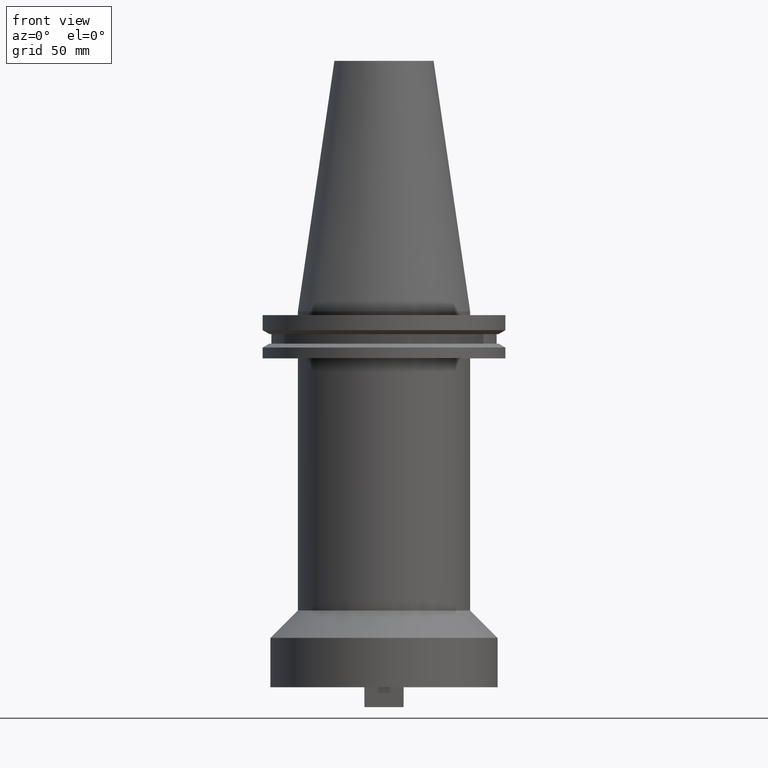
[diagram: clean part render]
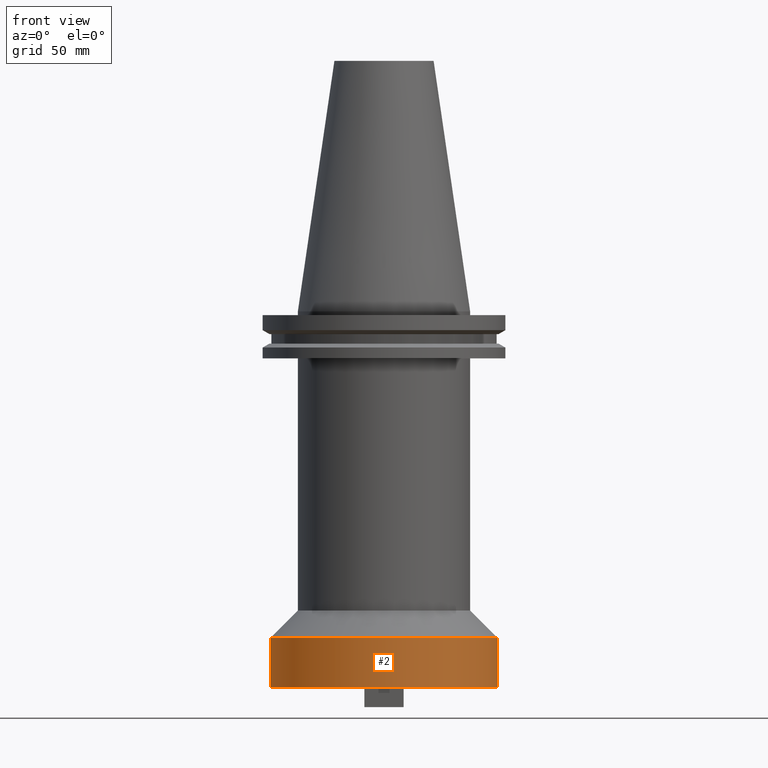
[diagram: same view with one face highlighted and labeled with its STEP entity id]
A machine part, front view. The second image highlights one B-rep face of the part: STEP entity #2.
In plain terms, the highlighted cylindrical surface (partial cylindrical patch) has radius 46.05 mm, axis along (-0, -0, 1).
Its self-contained STEP definition (entity closure, byte-faithful):
#2 = ADVANCED_FACE ( 'NONE', ( #227 ), #561, .T. ) ;
#105 = EDGE_CURVE ( 'NONE', #790, #1039, #1105, .T. ) ;
#163 = VERTEX_POINT ( 'NONE', #532 ) ;
#185 = DIRECTION ( 'NONE',  ( -0.000000000000000000, -0.000000000000000000, 1.000000000000000000 ) ) ;
#190 = DIRECTION ( 'NONE',  ( 1.000000000000000000, 0.000000000000000000, 0.000000000000000000 ) ) ;
#225 = EDGE_LOOP ( 'NONE', ( #1043, #802, #371, #726 ) ) ;
#226 = DIRECTION ( 'NONE',  ( -0.000000000000000000, -0.000000000000000000, 1.000000000000000000 ) ) ;
#227 = FACE_OUTER_BOUND ( 'NONE', #225, .T. ) ;
#269 = DIRECTION ( 'NONE',  ( -0.000000000000000000, -0.000000000000000000, 1.000000000000000000 ) ) ;
#271 = VERTEX_POINT ( 'NONE', #630 ) ;
#284 = DIRECTION ( 'NONE',  ( -0.000000000000000000, -0.000000000000000000, 1.000000000000000000 ) ) ;
#313 = DIRECTION ( 'NONE',  ( 1.000000000000000000, 0.000000000000000000, 0.000000000000000000 ) ) ;
#335 = EDGE_CURVE ( 'NONE', #163, #271, #991, .T. ) ;
#371 = ORIENTED_EDGE ( 'NONE', *, *, #105, .T. ) ;
#532 = CARTESIAN_POINT ( 'NONE',  ( -46.04999999999999716, 5.639498510073560988E-15, -152.4000000000000057 ) ) ;
#557 = DIRECTION ( 'NONE',  ( -0.000000000000000000, -0.000000000000000000, 1.000000000000000000 ) ) ;
#561 = CYLINDRICAL_SURFACE ( 'NONE', #601, 46.04999999999999716 ) ;
#577 = CARTESIAN_POINT ( 'NONE',  ( 0.000000000000000000, 0.000000000000000000, -152.4000000000000057 ) ) ;
#601 = AXIS2_PLACEMENT_3D ( 'NONE', #898, #269, #928 ) ;
#630 = CARTESIAN_POINT ( 'NONE',  ( -46.04999999999999716, 0.000000000000000000, -132.3949999999999534 ) ) ;
#645 = AXIS2_PLACEMENT_3D ( 'NONE', #577, #557, #313 ) ;
#663 = CARTESIAN_POINT ( 'NONE',  ( -46.04999999999999716, 5.639498510073560988E-15, 0.000000000000000000 ) ) ;
#667 = CARTESIAN_POINT ( 'NONE',  ( 46.04999999999999716, 5.639498510073560988E-15, -132.3949999999999534 ) ) ;
#726 = ORIENTED_EDGE ( 'NONE', *, *, #769, .F. ) ;
#769 = EDGE_CURVE ( 'NONE', #271, #1039, #809, .T. ) ;
#790 = VERTEX_POINT ( 'NONE', #804 ) ;
#802 = ORIENTED_EDGE ( 'NONE', *, *, #859, .T. ) ;
#804 = CARTESIAN_POINT ( 'NONE',  ( 46.04999999999999716, 0.000000000000000000, -152.4000000000000057 ) ) ;
#809 = CIRCLE ( 'NONE', #940, 46.04999999999999716 ) ;
#813 = CARTESIAN_POINT ( 'NONE',  ( 0.000000000000000000, 0.000000000000000000, -132.3949999999999534 ) ) ;
#859 = EDGE_CURVE ( 'NONE', #163, #790, #890, .T. ) ;
#890 = CIRCLE ( 'NONE', #645, 46.04999999999999716 ) ;
#898 = CARTESIAN_POINT ( 'NONE',  ( 0.000000000000000000, 0.000000000000000000, 0.000000000000000000 ) ) ;
#928 = DIRECTION ( 'NONE',  ( 1.000000000000000000, 0.000000000000000000, 0.000000000000000000 ) ) ;
#940 = AXIS2_PLACEMENT_3D ( 'NONE', #813, #284, #190 ) ;
#945 = CARTESIAN_POINT ( 'NONE',  ( 46.04999999999999716, 0.000000000000000000, 0.000000000000000000 ) ) ;
#991 = LINE ( 'NONE', #663, #1102 ) ;
#1039 = VERTEX_POINT ( 'NONE', #667 ) ;
#1043 = ORIENTED_EDGE ( 'NONE', *, *, #335, .F. ) ;
#1102 = VECTOR ( 'NONE', #226, 1000.000000000000000 ) ;
#1104 = VECTOR ( 'NONE', #185, 1000.000000000000000 ) ;
#1105 = LINE ( 'NONE', #945, #1104 ) ;